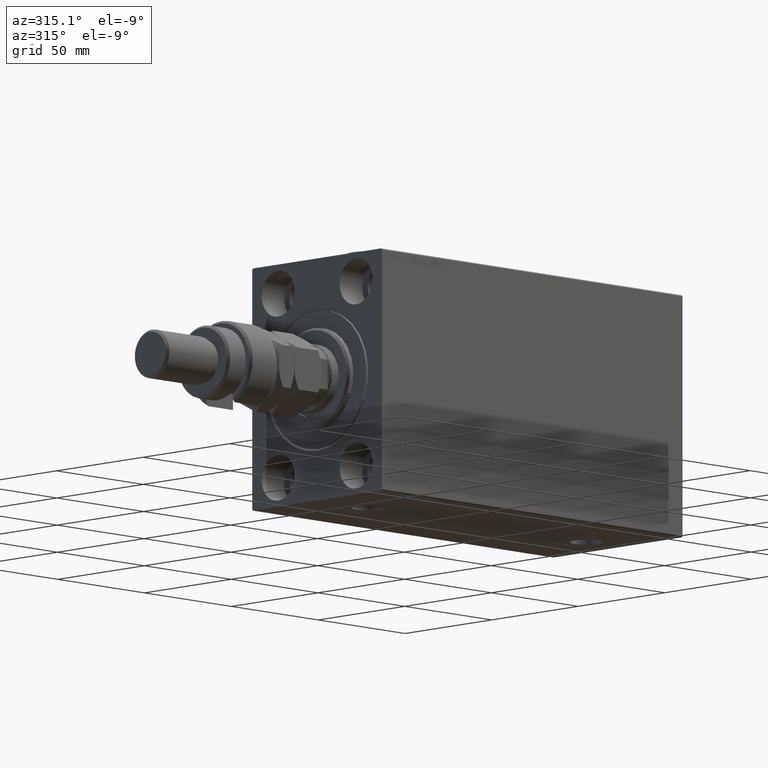
[diagram: clean part render]
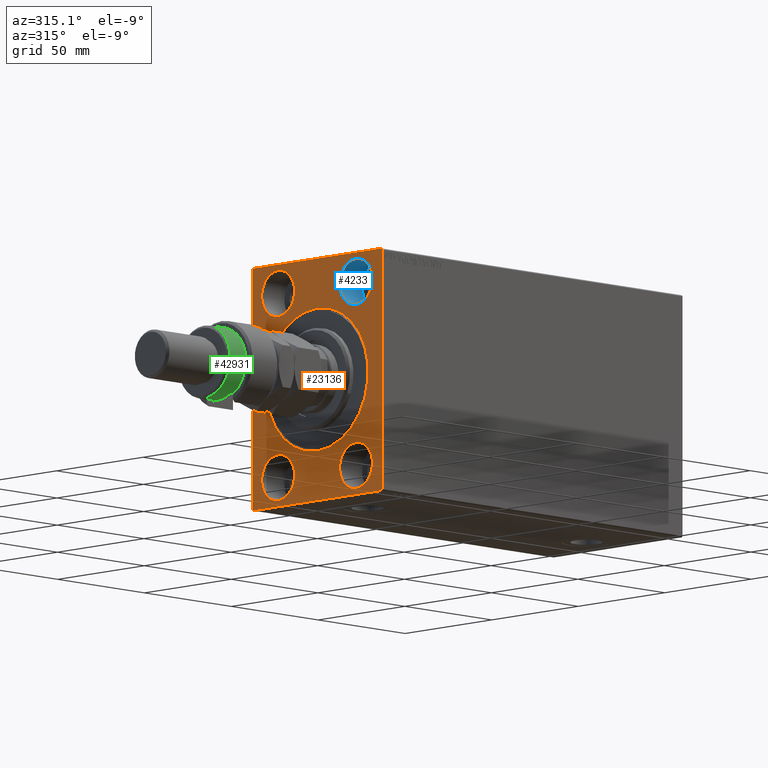
[diagram: same view with three faces highlighted in distinct colors, each labeled with its STEP entity id]
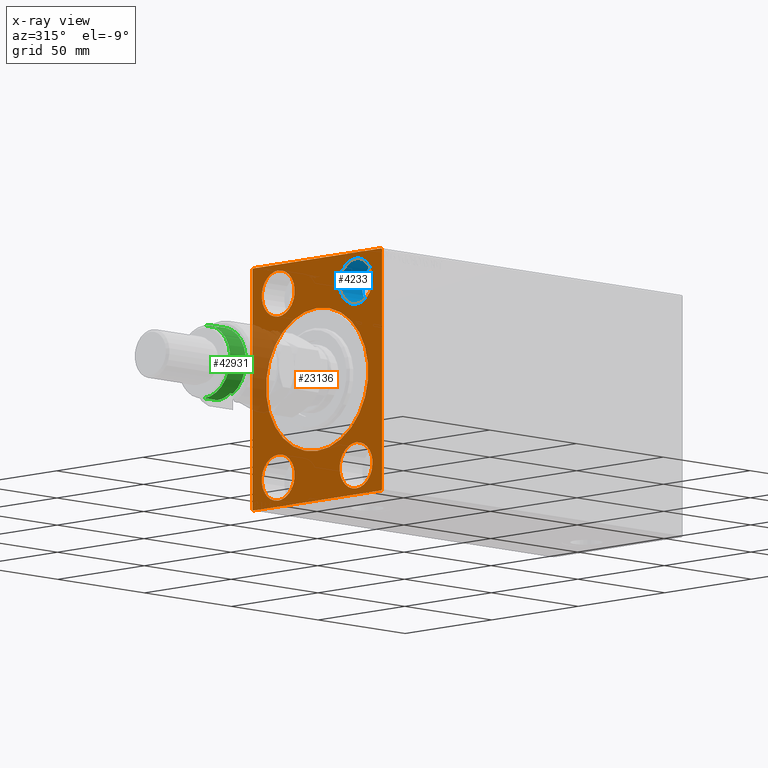
[diagram: x-ray of the same camera — body ghosted, the three highlighted faces saturated]
A machine part, auxiliary view with three faces highlighted in distinct colors.
The next image is the same camera in x-ray (body ghosted, the three faces saturated) — at least one of them is partly hidden behind the body in this view.
Their STEP definitions:

[orange] entity #23136 — the highlighted planar face has unit normal (1, 0, 0).
#38 = ORIENTED_EDGE ( 'NONE', *, *, #17950, .T. ) ;
#98 = AXIS2_PLACEMENT_3D ( 'NONE', #31514, #27385, #5476 ) ;
#107 = EDGE_CURVE ( 'NONE', #21772, #42533, #43635, .T. ) ;
#217 = CARTESIAN_POINT ( 'NONE',  ( 0.000000000000000000, -22.50000000000000711, -37.99999999999999289 ) ) ;
#403 = DIRECTION ( 'NONE',  ( 0.000000000000000000, 0.000000000000000000, 1.000000000000000000 ) ) ;
#626 = LINE ( 'NONE', #15025, #43769 ) ;
#1035 = VECTOR ( 'NONE', #22639, 999.9999999999998863 ) ;
#1121 = ORIENTED_EDGE ( 'NONE', *, *, #33089, .T. ) ;
#1875 = VERTEX_POINT ( 'NONE', #16102 ) ;
#1951 = CIRCLE ( 'NONE', #41581, 29.50000000000002842 ) ;
#2019 = VERTEX_POINT ( 'NONE', #30457 ) ;
#2037 = EDGE_LOOP ( 'NONE', ( #39298, #29060, #6691, #35120, #6881, #6926, #30021, #38 ) ) ;
#2138 = VERTEX_POINT ( 'NONE', #35061 ) ;
#2543 = VERTEX_POINT ( 'NONE', #11120 ) ;
#3748 = AXIS2_PLACEMENT_3D ( 'NONE', #42908, #20998, #13215 ) ;
#3847 = CIRCLE ( 'NONE', #14727, 9.500000000000001776 ) ;
#3965 = PLANE ( 'NONE',  #20775 ) ;
#4084 = CIRCLE ( 'NONE', #39080, 9.500000000000001776 ) ;
#4691 = VECTOR ( 'NONE', #27141, 1000.000000000000000 ) ;
#5174 = DIRECTION ( 'NONE',  ( 0.000000000000000000, 0.000000000000000000, -1.000000000000000000 ) ) ;
#5314 = VECTOR ( 'NONE', #30568, 1000.000000000000000 ) ;
#5353 = AXIS2_PLACEMENT_3D ( 'NONE', #9070, #31706, #5174 ) ;
#5355 = EDGE_CURVE ( 'NONE', #40450, #14032, #11663, .T. ) ;
#5476 = DIRECTION ( 'NONE',  ( 0.000000000000000000, 0.000000000000000000, 1.000000000000000000 ) ) ;
#5969 = VECTOR ( 'NONE', #41507, 1000.000000000000114 ) ;
#6221 = DIRECTION ( 'NONE',  ( 0.000000000000000000, 0.000000000000000000, 1.000000000000000000 ) ) ;
#6691 = ORIENTED_EDGE ( 'NONE', *, *, #27438, .F. ) ;
#6881 = ORIENTED_EDGE ( 'NONE', *, *, #13757, .F. ) ;
#6926 = ORIENTED_EDGE ( 'NONE', *, *, #7267, .T. ) ;
#7002 = CARTESIAN_POINT ( 'NONE',  ( 0.000000000000000000, 22.49999999999999645, -28.49999999999998934 ) ) ;
#7267 = EDGE_CURVE ( 'NONE', #2138, #14572, #626, .T. ) ;
#7382 = CARTESIAN_POINT ( 'NONE',  ( 0.000000000000000000, 37.49999999999999289, 49.50000000000000000 ) ) ;
#7438 = CARTESIAN_POINT ( 'NONE',  ( 0.000000000000000000, 37.50000000000000711, -50.00000000000000000 ) ) ;
#8247 = DIRECTION ( 'NONE',  ( 0.000000000000000000, 0.000000000000000000, 1.000000000000000000 ) ) ;
#8333 = EDGE_CURVE ( 'NONE', #2019, #2543, #25129, .T. ) ;
#8418 = LINE ( 'NONE', #37629, #5314 ) ;
#8772 = AXIS2_PLACEMENT_3D ( 'NONE', #18931, #29641, #403 ) ;
#9070 = CARTESIAN_POINT ( 'NONE',  ( 0.000000000000000000, 0.000000000000000000, 0.000000000000000000 ) ) ;
#11120 = CARTESIAN_POINT ( 'NONE',  ( 0.000000000000000000, -22.50000000000000711, -28.49999999999998934 ) ) ;
#11663 = LINE ( 'NONE', #40890, #1035 ) ;
#12283 = DIRECTION ( 'NONE',  ( 0.000000000000000000, 0.000000000000000000, -1.000000000000000000 ) ) ;
#12284 = CARTESIAN_POINT ( 'NONE',  ( 0.000000000000000000, 37.49999999999999289, 50.00000000000000711 ) ) ;
#12418 = CARTESIAN_POINT ( 'NONE',  ( 0.000000000000000000, -22.49999999999999645, 47.49999999999999289 ) ) ;
#12433 = ORIENTED_EDGE ( 'NONE', *, *, #37686, .F. ) ;
#13215 = DIRECTION ( 'NONE',  ( 0.000000000000000000, 0.000000000000000000, 1.000000000000000000 ) ) ;
#13538 = VERTEX_POINT ( 'NONE', #19183 ) ;
#13757 = EDGE_CURVE ( 'NONE', #2138, #14032, #14998, .T. ) ;
#13866 = EDGE_CURVE ( 'NONE', #32868, #1875, #1951, .T. ) ;
#14032 = VERTEX_POINT ( 'NONE', #7382 ) ;
#14572 = VERTEX_POINT ( 'NONE', #35943 ) ;
#14696 = CARTESIAN_POINT ( 'NONE',  ( 0.000000000000000000, 0.000000000000000000, 0.000000000000000000 ) ) ;
#14727 = AXIS2_PLACEMENT_3D ( 'NONE', #22147, #41113, #47955 ) ;
#14998 = LINE ( 'NONE', #7438, #31475 ) ;
#15025 = CARTESIAN_POINT ( 'NONE',  ( 0.000000000000000000, 37.50000000000000711, -49.50000000000000000 ) ) ;
#15089 = DIRECTION ( 'NONE',  ( -1.000000000000000000, 0.000000000000000000, 0.000000000000000000 ) ) ;
#15293 = CARTESIAN_POINT ( 'NONE',  ( 0.000000000000000000, 22.50000000000000355, 37.99999999999999289 ) ) ;
#15478 = LINE ( 'NONE', #12284, #4691 ) ;
#15527 = CARTESIAN_POINT ( 'NONE',  ( 0.000000000000000000, -22.49999999999999645, 28.49999999999998934 ) ) ;
#16102 = CARTESIAN_POINT ( 'NONE',  ( 0.000000000000000000, 0.000000000000000000, 29.50000000000002842 ) ) ;
#16159 = ORIENTED_EDGE ( 'NONE', *, *, #47981, .F. ) ;
#17229 = CARTESIAN_POINT ( 'NONE',  ( 0.000000000000000000, 22.50000000000000355, 28.49999999999998934 ) ) ;
#17950 = EDGE_CURVE ( 'NONE', #23555, #13538, #33723, .T. ) ;
#18598 = CIRCLE ( 'NONE', #32555, 9.500000000000001776 ) ;
#18666 = CARTESIAN_POINT ( 'NONE',  ( 0.000000000000000000, 22.50000000000000355, 47.49999999999999289 ) ) ;
#18741 = VERTEX_POINT ( 'NONE', #18666 ) ;
#18829 = DIRECTION ( 'NONE',  ( 0.000000000000000000, 0.000000000000000000, -1.000000000000000000 ) ) ;
#18931 = CARTESIAN_POINT ( 'NONE',  ( 0.000000000000000000, 22.49999999999999645, -37.99999999999999289 ) ) ;
#19183 = CARTESIAN_POINT ( 'NONE',  ( 0.000000000000000000, -37.50000000000000711, -49.50000000000000711 ) ) ;
#20229 = EDGE_LOOP ( 'NONE', ( #39566, #31760 ) ) ;
#20611 = EDGE_CURVE ( 'NONE', #24627, #13538, #39668, .T. ) ;
#20775 = AXIS2_PLACEMENT_3D ( 'NONE', #14696, #25876, #18829 ) ;
#20922 = DIRECTION ( 'NONE',  ( -0.000000000000000000, 0.7071067811865474617, 0.7071067811865474617 ) ) ;
#20998 = DIRECTION ( 'NONE',  ( -1.000000000000000000, 0.000000000000000000, 0.000000000000000000 ) ) ;
#21160 = EDGE_CURVE ( 'NONE', #18741, #31666, #22311, .T. ) ;
#21597 = CARTESIAN_POINT ( 'NONE',  ( 0.000000000000000000, -37.50000000000000711, 49.49999999999996447 ) ) ;
#21772 = VERTEX_POINT ( 'NONE', #35237 ) ;
#21989 = EDGE_CURVE ( 'NONE', #23555, #14572, #8418, .T. ) ;
#21994 = FACE_BOUND ( 'NONE', #28342, .T. ) ;
#22147 = CARTESIAN_POINT ( 'NONE',  ( 0.000000000000000000, -22.49999999999999645, 37.99999999999999289 ) ) ;
#22311 = CIRCLE ( 'NONE', #3748, 9.500000000000001776 ) ;
#22639 = DIRECTION ( 'NONE',  ( -0.000000000000000000, 0.7071067811865425767, -0.7071067811865525687 ) ) ;
#23136 = ADVANCED_FACE ( 'NONE', ( #41437, #21994, #37302, #36825, #33174, #40724 ), #3965, .F. ) ;
#23319 = DIRECTION ( 'NONE',  ( 0.000000000000000000, 0.000000000000000000, 1.000000000000000000 ) ) ;
#23555 = VERTEX_POINT ( 'NONE', #27749 ) ;
#24076 = DIRECTION ( 'NONE',  ( -1.000000000000000000, 0.000000000000000000, 0.000000000000000000 ) ) ;
#24109 = DIRECTION ( 'NONE',  ( 0.000000000000000000, 0.000000000000000000, -1.000000000000000000 ) ) ;
#24565 = CARTESIAN_POINT ( 'NONE',  ( 0.000000000000000000, -37.50000000000000711, 49.49999999999996447 ) ) ;
#24627 = VERTEX_POINT ( 'NONE', #21597 ) ;
#25129 = CIRCLE ( 'NONE', #29823, 9.500000000000001776 ) ;
#25876 = DIRECTION ( 'NONE',  ( 1.000000000000000000, 0.000000000000000000, 0.000000000000000000 ) ) ;
#26729 = VERTEX_POINT ( 'NONE', #41728 ) ;
#26891 = CARTESIAN_POINT ( 'NONE',  ( 0.000000000000000000, 0.000000000000000000, 0.000000000000000000 ) ) ;
#27141 = DIRECTION ( 'NONE',  ( 0.000000000000000000, -1.000000000000000000, -1.850371707708594316E-16 ) ) ;
#27385 = DIRECTION ( 'NONE',  ( -1.000000000000000000, 0.000000000000000000, 0.000000000000000000 ) ) ;
#27438 = EDGE_CURVE ( 'NONE', #40450, #26729, #15478, .T. ) ;
#27749 = CARTESIAN_POINT ( 'NONE',  ( 0.000000000000000000, -37.00000000000000711, -50.00000000000000711 ) ) ;
#27850 = ORIENTED_EDGE ( 'NONE', *, *, #47824, .F. ) ;
#28342 = EDGE_LOOP ( 'NONE', ( #16159, #43425 ) ) ;
#28377 = DIRECTION ( 'NONE',  ( -1.000000000000000000, 0.000000000000000000, 0.000000000000000000 ) ) ;
#28852 = EDGE_LOOP ( 'NONE', ( #12433, #45581 ) ) ;
#29060 = ORIENTED_EDGE ( 'NONE', *, *, #34213, .T. ) ;
#29641 = DIRECTION ( 'NONE',  ( -1.000000000000000000, 0.000000000000000000, 0.000000000000000000 ) ) ;
#29823 = AXIS2_PLACEMENT_3D ( 'NONE', #46880, #28377, #6221 ) ;
#30021 = ORIENTED_EDGE ( 'NONE', *, *, #21989, .F. ) ;
#30344 = CARTESIAN_POINT ( 'NONE',  ( 0.000000000000000000, 36.99999999999999289, 50.00000000000000711 ) ) ;
#30457 = CARTESIAN_POINT ( 'NONE',  ( 0.000000000000000000, -22.50000000000000711, -47.49999999999999289 ) ) ;
#30568 = DIRECTION ( 'NONE',  ( 0.000000000000000000, 1.000000000000000000, 9.251858538542970348E-17 ) ) ;
#30920 = VECTOR ( 'NONE', #24109, 1000.000000000000000 ) ;
#31467 = EDGE_LOOP ( 'NONE', ( #1121, #46332 ) ) ;
#31475 = VECTOR ( 'NONE', #33721, 1000.000000000000000 ) ;
#31514 = CARTESIAN_POINT ( 'NONE',  ( 0.000000000000000000, 22.49999999999999645, -37.99999999999999289 ) ) ;
#31666 = VERTEX_POINT ( 'NONE', #17229 ) ;
#31706 = DIRECTION ( 'NONE',  ( 1.000000000000000000, 0.000000000000000000, 0.000000000000000000 ) ) ;
#31760 = ORIENTED_EDGE ( 'NONE', *, *, #47111, .F. ) ;
#32094 = CIRCLE ( 'NONE', #8772, 9.500000000000001776 ) ;
#32555 = AXIS2_PLACEMENT_3D ( 'NONE', #217, #15089, #32865 ) ;
#32865 = DIRECTION ( 'NONE',  ( 0.000000000000000000, 0.000000000000000000, 1.000000000000000000 ) ) ;
#32868 = VERTEX_POINT ( 'NONE', #47581 ) ;
#33089 = EDGE_CURVE ( 'NONE', #1875, #32868, #36407, .T. ) ;
#33174 = FACE_BOUND ( 'NONE', #28852, .T. ) ;
#33538 = DIRECTION ( 'NONE',  ( -1.000000000000000000, 0.000000000000000000, 0.000000000000000000 ) ) ;
#33721 = DIRECTION ( 'NONE',  ( 0.000000000000000000, -1.387778780781445676E-16, 1.000000000000000000 ) ) ;
#33723 = LINE ( 'NONE', #37369, #5969 ) ;
#34213 = EDGE_CURVE ( 'NONE', #24627, #26729, #43074, .T. ) ;
#34919 = DIRECTION ( 'NONE',  ( 1.000000000000000000, 0.000000000000000000, 0.000000000000000000 ) ) ;
#35061 = CARTESIAN_POINT ( 'NONE',  ( 0.000000000000000000, 37.50000000000000711, -49.50000000000000000 ) ) ;
#35120 = ORIENTED_EDGE ( 'NONE', *, *, #5355, .T. ) ;
#35237 = CARTESIAN_POINT ( 'NONE',  ( 0.000000000000000000, 22.49999999999999645, -47.49999999999999289 ) ) ;
#35943 = CARTESIAN_POINT ( 'NONE',  ( 0.000000000000000000, 37.00000000000000711, -50.00000000000000000 ) ) ;
#36151 = VERTEX_POINT ( 'NONE', #12418 ) ;
#36407 = CIRCLE ( 'NONE', #5353, 29.50000000000002842 ) ;
#36825 = FACE_BOUND ( 'NONE', #20229, .T. ) ;
#37302 = FACE_BOUND ( 'NONE', #47539, .T. ) ;
#37369 = CARTESIAN_POINT ( 'NONE',  ( 0.000000000000000000, -37.00000000000000711, -50.00000000000000711 ) ) ;
#37629 = CARTESIAN_POINT ( 'NONE',  ( 0.000000000000000000, -37.50000000000000711, -50.00000000000000711 ) ) ;
#37686 = EDGE_CURVE ( 'NONE', #2543, #2019, #18598, .T. ) ;
#38302 = CIRCLE ( 'NONE', #42198, 9.500000000000001776 ) ;
#39080 = AXIS2_PLACEMENT_3D ( 'NONE', #15293, #33538, #23319 ) ;
#39242 = EDGE_CURVE ( 'NONE', #46369, #36151, #3847, .T. ) ;
#39298 = ORIENTED_EDGE ( 'NONE', *, *, #20611, .F. ) ;
#39494 = ORIENTED_EDGE ( 'NONE', *, *, #39242, .F. ) ;
#39566 = ORIENTED_EDGE ( 'NONE', *, *, #21160, .F. ) ;
#39668 = LINE ( 'NONE', #46743, #30920 ) ;
#40450 = VERTEX_POINT ( 'NONE', #30344 ) ;
#40724 = FACE_OUTER_BOUND ( 'NONE', #2037, .T. ) ;
#40890 = CARTESIAN_POINT ( 'NONE',  ( 0.000000000000000000, 36.99999999999999289, 50.00000000000000711 ) ) ;
#41113 = DIRECTION ( 'NONE',  ( -1.000000000000000000, 0.000000000000000000, 0.000000000000000000 ) ) ;
#41437 = FACE_BOUND ( 'NONE', #31467, .T. ) ;
#41507 = DIRECTION ( 'NONE',  ( -0.000000000000000000, -0.7071067811865474617, 0.7071067811865474617 ) ) ;
#41581 = AXIS2_PLACEMENT_3D ( 'NONE', #26891, #34919, #12283 ) ;
#41728 = CARTESIAN_POINT ( 'NONE',  ( 0.000000000000000000, -36.99999999999997868, 49.99999999999999289 ) ) ;
#42198 = AXIS2_PLACEMENT_3D ( 'NONE', #42337, #24076, #8247 ) ;
#42337 = CARTESIAN_POINT ( 'NONE',  ( 0.000000000000000000, -22.49999999999999645, 37.99999999999999289 ) ) ;
#42533 = VERTEX_POINT ( 'NONE', #7002 ) ;
#42669 = VECTOR ( 'NONE', #20922, 1000.000000000000114 ) ;
#42908 = CARTESIAN_POINT ( 'NONE',  ( 0.000000000000000000, 22.50000000000000355, 37.99999999999999289 ) ) ;
#43074 = LINE ( 'NONE', #24565, #42669 ) ;
#43425 = ORIENTED_EDGE ( 'NONE', *, *, #107, .F. ) ;
#43635 = CIRCLE ( 'NONE', #98, 9.500000000000001776 ) ;
#43769 = VECTOR ( 'NONE', #44723, 1000.000000000000114 ) ;
#44723 = DIRECTION ( 'NONE',  ( 0.000000000000000000, -0.7071067811865474617, -0.7071067811865474617 ) ) ;
#45581 = ORIENTED_EDGE ( 'NONE', *, *, #8333, .F. ) ;
#46332 = ORIENTED_EDGE ( 'NONE', *, *, #13866, .T. ) ;
#46369 = VERTEX_POINT ( 'NONE', #15527 ) ;
#46743 = CARTESIAN_POINT ( 'NONE',  ( 0.000000000000000000, -37.50000000000000711, 49.99999999999999289 ) ) ;
#46880 = CARTESIAN_POINT ( 'NONE',  ( 0.000000000000000000, -22.50000000000000711, -37.99999999999999289 ) ) ;
#47111 = EDGE_CURVE ( 'NONE', #31666, #18741, #4084, .T. ) ;
#47539 = EDGE_LOOP ( 'NONE', ( #27850, #39494 ) ) ;
#47581 = CARTESIAN_POINT ( 'NONE',  ( 0.000000000000000000, 3.612708057484695548E-15, -29.50000000000002842 ) ) ;
#47824 = EDGE_CURVE ( 'NONE', #36151, #46369, #38302, .T. ) ;
#47955 = DIRECTION ( 'NONE',  ( 0.000000000000000000, 0.000000000000000000, 1.000000000000000000 ) ) ;
#47981 = EDGE_CURVE ( 'NONE', #42533, #21772, #32094, .T. ) ;

[blue] entity #4233 — the highlighted cylindrical surface (edge-blend (fillet) strip) has radius 9.5 mm, axis along (-1, -0, -0).
#705 = VECTOR ( 'NONE', #28857, 1000.000000000000000 ) ;
#2354 = CIRCLE ( 'NONE', #42781, 9.500000000000001776 ) ;
#4059 = DIRECTION ( 'NONE',  ( -1.000000000000000000, -0.000000000000000000, -0.000000000000000000 ) ) ;
#4233 = ADVANCED_FACE ( 'NONE', ( #13656 ), #17796, .F. ) ;
#5561 = VERTEX_POINT ( 'NONE', #12641 ) ;
#7713 = CARTESIAN_POINT ( 'NONE',  ( 13.00000000000000000, -22.49999999999999645, 37.99999999999999289 ) ) ;
#7762 = DIRECTION ( 'NONE',  ( -1.000000000000000000, -0.000000000000000000, -0.000000000000000000 ) ) ;
#8247 = DIRECTION ( 'NONE',  ( 0.000000000000000000, 0.000000000000000000, 1.000000000000000000 ) ) ;
#9990 = DIRECTION ( 'NONE',  ( 0.000000000000000000, 0.000000000000000000, 1.000000000000000000 ) ) ;
#11396 = LINE ( 'NONE', #36974, #19315 ) ;
#12418 = CARTESIAN_POINT ( 'NONE',  ( 0.000000000000000000, -22.49999999999999645, 47.49999999999999289 ) ) ;
#12641 = CARTESIAN_POINT ( 'NONE',  ( 13.00000000000000000, -22.49999999999999645, 28.49999999999998934 ) ) ;
#13656 = FACE_OUTER_BOUND ( 'NONE', #34403, .T. ) ;
#13993 = CARTESIAN_POINT ( 'NONE',  ( 13.00000000000000000, -22.49999999999999645, 47.49999999999999289 ) ) ;
#15527 = CARTESIAN_POINT ( 'NONE',  ( 0.000000000000000000, -22.49999999999999645, 28.49999999999998934 ) ) ;
#17796 = CYLINDRICAL_SURFACE ( 'NONE', #41417, 9.500000000000001776 ) ;
#18296 = VERTEX_POINT ( 'NONE', #13993 ) ;
#19315 = VECTOR ( 'NONE', #7762, 1000.000000000000000 ) ;
#22219 = DIRECTION ( 'NONE',  ( -1.000000000000000000, 0.000000000000000000, 0.000000000000000000 ) ) ;
#22392 = ORIENTED_EDGE ( 'NONE', *, *, #47824, .T. ) ;
#24076 = DIRECTION ( 'NONE',  ( -1.000000000000000000, 0.000000000000000000, 0.000000000000000000 ) ) ;
#28857 = DIRECTION ( 'NONE',  ( -1.000000000000000000, -0.000000000000000000, -0.000000000000000000 ) ) ;
#29994 = DIRECTION ( 'NONE',  ( 0.000000000000000000, 0.000000000000000000, 1.000000000000000000 ) ) ;
#31861 = ORIENTED_EDGE ( 'NONE', *, *, #38477, .F. ) ;
#32505 = CARTESIAN_POINT ( 'NONE',  ( 13.00000000000000000, -22.49999999999999645, 28.49999999999998934 ) ) ;
#32893 = ORIENTED_EDGE ( 'NONE', *, *, #41000, .F. ) ;
#34403 = EDGE_LOOP ( 'NONE', ( #31861, #32893, #44987, #22392 ) ) ;
#36149 = LINE ( 'NONE', #32505, #705 ) ;
#36151 = VERTEX_POINT ( 'NONE', #12418 ) ;
#36769 = EDGE_CURVE ( 'NONE', #18296, #36151, #11396, .T. ) ;
#36974 = CARTESIAN_POINT ( 'NONE',  ( 13.00000000000000000, -22.49999999999999645, 47.49999999999999289 ) ) ;
#38302 = CIRCLE ( 'NONE', #42198, 9.500000000000001776 ) ;
#38477 = EDGE_CURVE ( 'NONE', #5561, #46369, #36149, .T. ) ;
#41000 = EDGE_CURVE ( 'NONE', #18296, #5561, #2354, .T. ) ;
#41417 = AXIS2_PLACEMENT_3D ( 'NONE', #7713, #4059, #9990 ) ;
#42198 = AXIS2_PLACEMENT_3D ( 'NONE', #42337, #24076, #8247 ) ;
#42337 = CARTESIAN_POINT ( 'NONE',  ( 0.000000000000000000, -22.49999999999999645, 37.99999999999999289 ) ) ;
#42781 = AXIS2_PLACEMENT_3D ( 'NONE', #44379, #22219, #29994 ) ;
#44379 = CARTESIAN_POINT ( 'NONE',  ( 13.00000000000000000, -22.49999999999999645, 37.99999999999999289 ) ) ;
#44987 = ORIENTED_EDGE ( 'NONE', *, *, #36769, .T. ) ;
#46369 = VERTEX_POINT ( 'NONE', #15527 ) ;
#47824 = EDGE_CURVE ( 'NONE', #36151, #46369, #38302, .T. ) ;

[green] entity #42931 — the highlighted cylindrical surface (partial cylindrical patch) has radius 15 mm, axis along (1, -0, -0).
#1150 = CARTESIAN_POINT ( 'NONE',  ( -15.00000000000000000, 0.000000000000000000, 26.00000000000000355 ) ) ;
#2055 = DIRECTION ( 'NONE',  ( 0.000000000000000000, 0.000000000000000000, -1.000000000000000000 ) ) ;
#2080 = VECTOR ( 'NONE', #23494, 1000.000000000000000 ) ;
#2106 = CARTESIAN_POINT ( 'NONE',  ( 0.000000000000000000, 0.000000000000000000, 16.00000000000000000 ) ) ;
#3721 = DIRECTION ( 'NONE',  ( 0.000000000000000000, 0.000000000000000000, 1.000000000000000000 ) ) ;
#4008 = FACE_OUTER_BOUND ( 'NONE', #21829, .T. ) ;
#4481 = CARTESIAN_POINT ( 'NONE',  ( 0.000000000000000000, 0.000000000000000000, 24.99999999999997868 ) ) ;
#5775 = LINE ( 'NONE', #1150, #24288 ) ;
#7043 = DIRECTION ( 'NONE',  ( -0.000000000000000000, -0.000000000000000000, -1.000000000000000000 ) ) ;
#8135 = CARTESIAN_POINT ( 'NONE',  ( 0.000000000000000000, 0.000000000000000000, 26.00000000000000355 ) ) ;
#9239 = EDGE_CURVE ( 'NONE', #38512, #43702, #16589, .T. ) ;
#9794 = EDGE_CURVE ( 'NONE', #38512, #40459, #21904, .T. ) ;
#13018 = CARTESIAN_POINT ( 'NONE',  ( -12.99038105676658006, -7.500000000000000000, 26.00000000000000355 ) ) ;
#13037 = EDGE_CURVE ( 'NONE', #33630, #40459, #21418, .T. ) ;
#14794 = CARTESIAN_POINT ( 'NONE',  ( 15.00000000000000000, 1.836970198721029589E-15, 16.00000000000000000 ) ) ;
#15140 = ORIENTED_EDGE ( 'NONE', *, *, #9239, .T. ) ;
#15405 = DIRECTION ( 'NONE',  ( 1.000000000000000000, 0.000000000000000000, 0.000000000000000000 ) ) ;
#16589 = CIRCLE ( 'NONE', #25920, 15.00000000000000000 ) ;
#16821 = EDGE_CURVE ( 'NONE', #47965, #20797, #37794, .T. ) ;
#16966 = CARTESIAN_POINT ( 'NONE',  ( -12.99038105676658006, -7.500000000000000000, 16.00000000000000000 ) ) ;
#18000 = EDGE_CURVE ( 'NONE', #47965, #33630, #42961, .T. ) ;
#19578 = DIRECTION ( 'NONE',  ( -0.000000000000000000, -0.000000000000000000, -1.000000000000000000 ) ) ;
#20797 = VERTEX_POINT ( 'NONE', #42730 ) ;
#21418 = CIRCLE ( 'NONE', #35359, 15.00000000000000000 ) ;
#21829 = EDGE_LOOP ( 'NONE', ( #30398, #15140, #46317, #30521, #37941, #33289 ) ) ;
#21904 = LINE ( 'NONE', #44297, #34505 ) ;
#22573 = CARTESIAN_POINT ( 'NONE',  ( -12.99038105676658006, -7.500000000000000000, 17.50000000000000000 ) ) ;
#23121 = CARTESIAN_POINT ( 'NONE',  ( -15.00000000000000000, 0.000000000000000000, 24.99999999999997868 ) ) ;
#23223 = CARTESIAN_POINT ( 'NONE',  ( 15.00000000000000000, 1.836970198721029589E-15, 24.99999999999997868 ) ) ;
#23494 = DIRECTION ( 'NONE',  ( -0.000000000000000000, -0.000000000000000000, -1.000000000000000000 ) ) ;
#24288 = VECTOR ( 'NONE', #31102, 1000.000000000000000 ) ;
#24455 = DIRECTION ( 'NONE',  ( -1.000000000000000000, 0.000000000000000000, 0.000000000000000000 ) ) ;
#25920 = AXIS2_PLACEMENT_3D ( 'NONE', #4481, #34175, #41241 ) ;
#30287 = CYLINDRICAL_SURFACE ( 'NONE', #38176, 15.00000000000000000 ) ;
#30398 = ORIENTED_EDGE ( 'NONE', *, *, #9794, .F. ) ;
#30521 = ORIENTED_EDGE ( 'NONE', *, *, #16821, .F. ) ;
#31102 = DIRECTION ( 'NONE',  ( -0.000000000000000000, -0.000000000000000000, -1.000000000000000000 ) ) ;
#32472 = CARTESIAN_POINT ( 'NONE',  ( 0.000000000000000000, 0.000000000000000000, 17.50000000000000000 ) ) ;
#33289 = ORIENTED_EDGE ( 'NONE', *, *, #13037, .T. ) ;
#33630 = VERTEX_POINT ( 'NONE', #16966 ) ;
#33932 = AXIS2_PLACEMENT_3D ( 'NONE', #32472, #2055, #24455 ) ;
#34175 = DIRECTION ( 'NONE',  ( 0.000000000000000000, 0.000000000000000000, -1.000000000000000000 ) ) ;
#34505 = VECTOR ( 'NONE', #7043, 1000.000000000000000 ) ;
#35359 = AXIS2_PLACEMENT_3D ( 'NONE', #2106, #3721, #15405 ) ;
#37794 = CIRCLE ( 'NONE', #33932, 15.00000000000000000 ) ;
#37941 = ORIENTED_EDGE ( 'NONE', *, *, #18000, .T. ) ;
#38176 = AXIS2_PLACEMENT_3D ( 'NONE', #8135, #19578, #38313 ) ;
#38313 = DIRECTION ( 'NONE',  ( -1.000000000000000000, 0.000000000000000000, 0.000000000000000000 ) ) ;
#38512 = VERTEX_POINT ( 'NONE', #23223 ) ;
#40459 = VERTEX_POINT ( 'NONE', #14794 ) ;
#41241 = DIRECTION ( 'NONE',  ( 1.000000000000000000, 0.000000000000000000, 0.000000000000000000 ) ) ;
#42730 = CARTESIAN_POINT ( 'NONE',  ( -15.00000000000000000, 0.000000000000000000, 17.50000000000000000 ) ) ;
#42931 = ADVANCED_FACE ( 'NONE', ( #4008 ), #30287, .T. ) ;
#42961 = LINE ( 'NONE', #13018, #2080 ) ;
#43702 = VERTEX_POINT ( 'NONE', #23121 ) ;
#44297 = CARTESIAN_POINT ( 'NONE',  ( 15.00000000000000000, 1.836970198721029589E-15, 26.00000000000000355 ) ) ;
#46317 = ORIENTED_EDGE ( 'NONE', *, *, #47266, .T. ) ;
#47266 = EDGE_CURVE ( 'NONE', #43702, #20797, #5775, .T. ) ;
#47965 = VERTEX_POINT ( 'NONE', #22573 ) ;